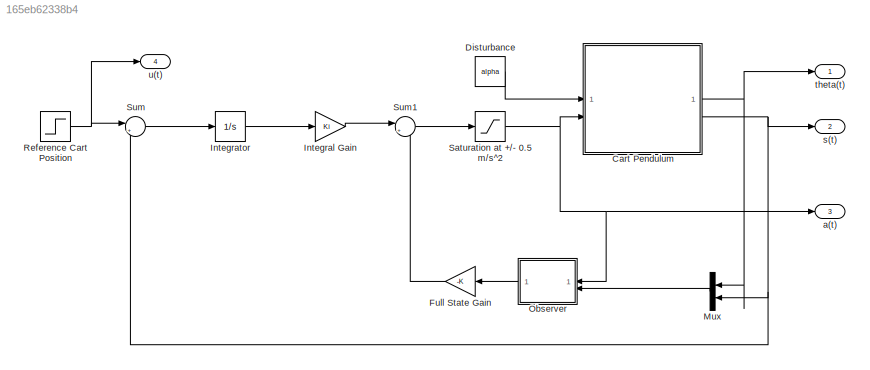
MODEL slx_165eb62338b4
KIND model
CONFIG AbsTol = auto
CONFIG EnableMultiTasking = off
CONFIG FixedStep = auto
CONFIG MaxStep = auto
CONFIG MinStep = auto
CONFIG RelTol = 1e-3
CONFIG SampleTimeConstraint = Unconstrained
CONFIG SolverName = VariableStepAuto
CONFIG StartTime = 0.0
CONFIG StopTime = 20
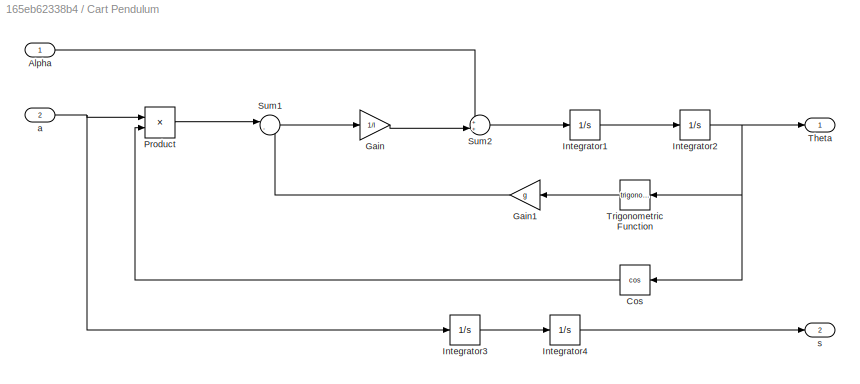
BLOCK [SubSystem] Cart Pendulum
BLOCK [Inport] Cart Pendulum/Alpha
BLOCK [Trigonometry] Cart Pendulum/Cos
  Operator = cos
BLOCK [Gain] Cart Pendulum/Gain
  Gain = 1/l
BLOCK [Gain] Cart Pendulum/Gain1
  Gain = g
BLOCK [Integrator] Cart Pendulum/Integrator1
BLOCK [Integrator] Cart Pendulum/Integrator2
BLOCK [Integrator] Cart Pendulum/Integrator3
BLOCK [Integrator] Cart Pendulum/Integrator4
BLOCK [Product] Cart Pendulum/Product
BLOCK [Sum] Cart Pendulum/Sum1
  Inputs = |-+
BLOCK [Sum] Cart Pendulum/Sum2
  Inputs = ++|
  NameLocation = top
BLOCK [Outport] Cart Pendulum/Theta
BLOCK [Trigonometry] Cart Pendulum/Trigonometric Function
BLOCK [Inport] Cart Pendulum/a
  Port = 2
BLOCK [Outport] Cart Pendulum/s
  Port = 2
BLOCK [Constant] Disturbance
  Value = alpha
BLOCK [Gain] Full State Gain
  Gain = -K
  Multiplication = Matrix(K*u)
BLOCK [Gain] Integral Gain
  Gain = Ki
BLOCK [Integrator] Integrator
BLOCK [Mux] Mux
  DisplayOption = bar
  Inputs = 2
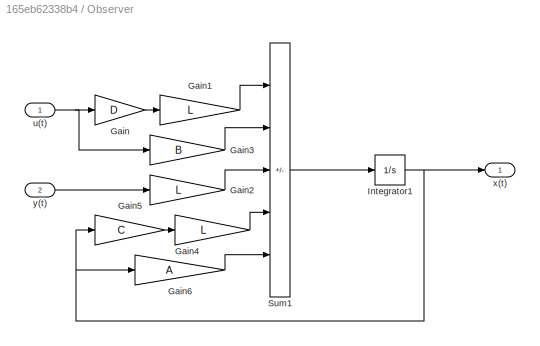
BLOCK [SubSystem] Observer
BLOCK [Gain] Observer/Gain
  Gain = D
  Multiplication = Matrix(K*u)
BLOCK [Gain] Observer/Gain1
  Gain = L
  Multiplication = Matrix(K*u) (u vector)
BLOCK [Gain] Observer/Gain2
  Gain = L
  Multiplication = Matrix(K*u) (u vector)
BLOCK [Gain] Observer/Gain3
  Gain = B
  Multiplication = Matrix(K*u)
BLOCK [Gain] Observer/Gain4
  Gain = L
  Multiplication = Matrix(K*u) (u vector)
BLOCK [Gain] Observer/Gain5
  Gain = C
  Multiplication = Matrix(K*u) (u vector)
BLOCK [Gain] Observer/Gain6
  Gain = A
  Multiplication = Matrix(K*u) (u vector)
BLOCK [Integrator] Observer/Integrator1
BLOCK [Sum] Observer/Sum1
  IconShape = rectangular
  Inputs = |-++-+
BLOCK [Inport] Observer/u(t)
BLOCK [Outport] Observer/x(t)
BLOCK [Inport] Observer/y(t)
  Port = 2
BLOCK [Step] Reference Cart Position
  SampleTime = 0
  Time = 0
BLOCK [Saturate] Saturation at +//- 0.5 m//s^2
BLOCK [Sum] Sum
  Inputs = |+-
BLOCK [Sum] Sum1
  Inputs = |++
BLOCK [Outport] a(t)
  Port = 3
  SignalName = a
BLOCK [Outport] s(t)
  Port = 2
  SignalName = s
BLOCK [Outport] theta(t)
  SignalName = theta
BLOCK [Outport] u(t)
  Port = 4
  SignalName = step
LINE Cart Pendulum/Alpha:1 -> Cart Pendulum/Sum2:1
LINE Cart Pendulum/Cos:1 -> Cart Pendulum/Product:2
LINE Cart Pendulum/Gain1:1 -> Cart Pendulum/Sum1:2
LINE Cart Pendulum/Gain:1 -> Cart Pendulum/Sum2:2
LINE Cart Pendulum/Integrator1:1 -> Cart Pendulum/Integrator2:1
NET Cart Pendulum/Integrator2:1 -> Cart Pendulum/Cos:1, Cart Pendulum/Theta:1, Cart Pendulum/Trigonometric Function:1
LINE Cart Pendulum/Integrator3:1 -> Cart Pendulum/Integrator4:1
LINE Cart Pendulum/Integrator4:1 -> Cart Pendulum/s:1
LINE Cart Pendulum/Product:1 -> Cart Pendulum/Sum1:1
LINE Cart Pendulum/Sum1:1 -> Cart Pendulum/Gain:1
LINE Cart Pendulum/Sum2:1 -> Cart Pendulum/Integrator1:1
LINE Cart Pendulum/Trigonometric Function:1 -> Cart Pendulum/Gain1:1
NET Cart Pendulum/a:1 -> Cart Pendulum/Integrator3:1, Cart Pendulum/Product:1
NET Cart Pendulum:1 -> Mux:1, theta(t):1
NET Cart Pendulum:2 -> Mux:2, Sum:2, s(t):1
LINE Disturbance:1 -> Cart Pendulum:1
LINE Full State Gain:1 -> Sum1:2
LINE Integral Gain:1 -> Sum1:1
LINE Integrator:1 -> Integral Gain:1
LINE Mux:1 -> Observer:2
LINE Observer/Gain1:1 -> Observer/Sum1:1
LINE Observer/Gain2:1 -> Observer/Sum1:3
LINE Observer/Gain3:1 -> Observer/Sum1:2
LINE Observer/Gain4:1 -> Observer/Sum1:4
LINE Observer/Gain5:1 -> Observer/Gain4:1
LINE Observer/Gain6:1 -> Observer/Sum1:5
LINE Observer/Gain:1 -> Observer/Gain1:1
NET Observer/Integrator1:1 -> Observer/Gain5:1, Observer/Gain6:1, Observer/x(t):1
LINE Observer/Sum1:1 -> Observer/Integrator1:1
NET Observer/u(t):1 -> Observer/Gain3:1, Observer/Gain:1
LINE Observer/y(t):1 -> Observer/Gain2:1
LINE Observer:1 -> Full State Gain:1
NET Reference Cart Position:1 -> Sum:1, u(t):1
NET Saturation at +//- 0.5 m//s^2:1 -> Cart Pendulum:2, Observer:1, a(t):1
LINE Sum1:1 -> Saturation at +//- 0.5 m//s^2:1
LINE Sum:1 -> Integrator:1
note: NET lines group one-source signal fan-out (src -> all destinations, sorted); 1:1 wires keep LINE
